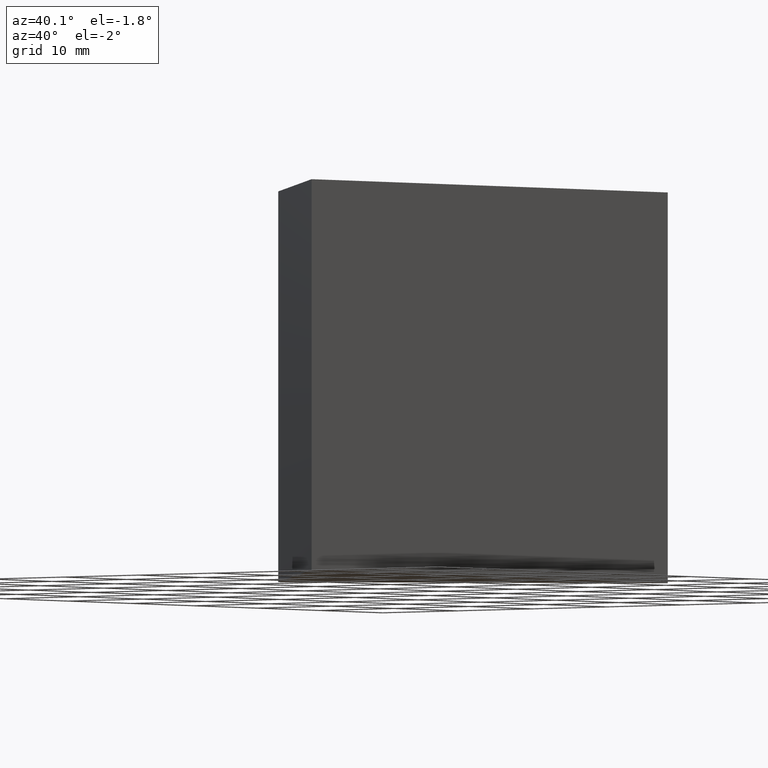
[diagram: clean part render]
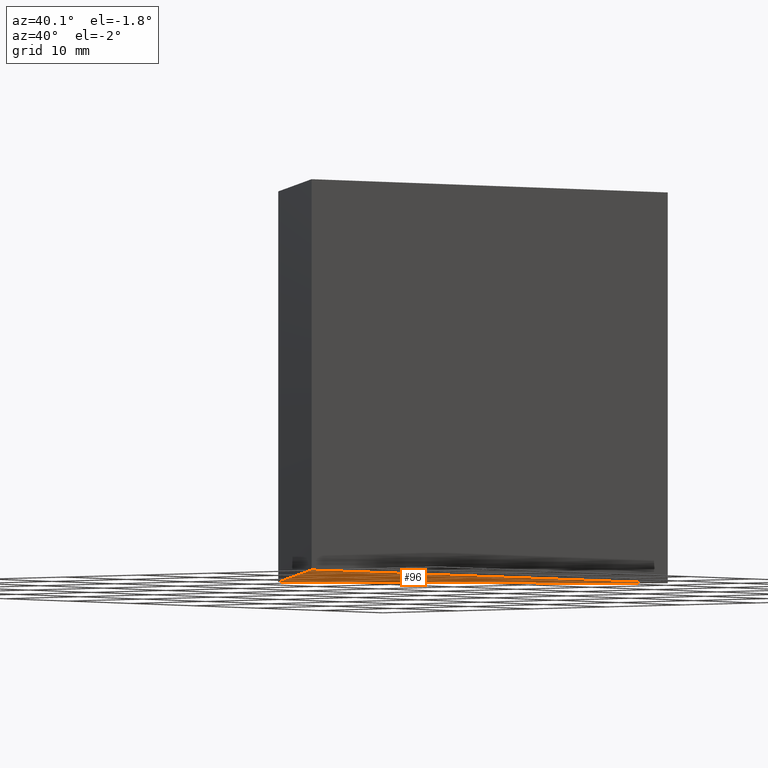
[diagram: same view with one face highlighted and labeled with its STEP entity id]
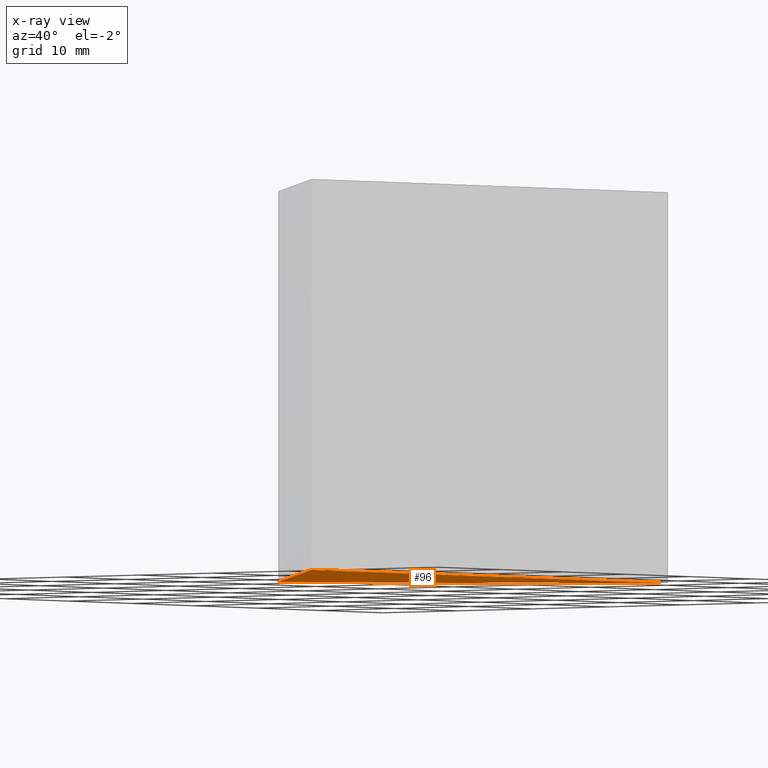
[diagram: x-ray of the same camera — body ghosted, the highlighted face saturated]
A machine part, auxiliary view. The second image highlights one B-rep face of the part: STEP entity #96.
The next image is the same camera in x-ray: the body ghosted, the highlighted face saturated — about 0% of this face is hidden behind the body in this view.
In plain terms, the highlighted planar face has unit normal (-0, 0, 1).
Its self-contained STEP definition (entity closure, byte-faithful):
#18 = VERTEX_POINT ( 'NONE', #36 ) ;
#25 = CARTESIAN_POINT ( 'NONE',  ( 563.0071948272914100, 144.2705164697499600, 0.0000000000000000000 ) ) ;
#30 = VECTOR ( 'NONE', #105, 1000.000000000000100 ) ;
#32 = FACE_OUTER_BOUND ( 'NONE', #62, .T. ) ;
#34 = AXIS2_PLACEMENT_3D ( 'NONE', #129, #103, #79 ) ;
#36 = CARTESIAN_POINT ( 'NONE',  ( 591.2914660747533200, 172.5547877172118700, 0.0000000000000000000 ) ) ;
#39 = VECTOR ( 'NONE', #46, 1000.000000000000000 ) ;
#46 = DIRECTION ( 'NONE',  ( -0.7071067811865479100, -0.7071067811865472400, -0.0000000000000000000 ) ) ;
#47 = DIRECTION ( 'NONE',  ( 0.0000000000000000000, 1.000000000000000000, 0.0000000000000000000 ) ) ;
#62 = EDGE_LOOP ( 'NONE', ( #148, #84, #124 ) ) ;
#64 = LINE ( 'NONE', #140, #30 ) ;
#73 = VECTOR ( 'NONE', #47, 1000.000000000000000 ) ;
#79 = DIRECTION ( 'NONE',  ( 1.000000000000000000, 0.0000000000000000000, 0.0000000000000000000 ) ) ;
#84 = ORIENTED_EDGE ( 'NONE', *, *, #144, .F. ) ;
#86 = CARTESIAN_POINT ( 'NONE',  ( 591.2914660747533200, 115.9862452222880600, 0.0000000000000000000 ) ) ;
#88 = EDGE_CURVE ( 'NONE', #120, #18, #133, .T. ) ;
#92 = CARTESIAN_POINT ( 'NONE',  ( 591.2914660747533200, 115.9862452222880600, 0.0000000000000000000 ) ) ;
#95 = VERTEX_POINT ( 'NONE', #101 ) ;
#96 = ADVANCED_FACE ( 'NONE', ( #32 ), #117, .F. ) ;
#101 = CARTESIAN_POINT ( 'NONE',  ( 563.0071948272914100, 144.2705164697499600, 0.0000000000000000000 ) ) ;
#103 = DIRECTION ( 'NONE',  ( -0.0000000000000000000, 0.0000000000000000000, 1.000000000000000000 ) ) ;
#105 = DIRECTION ( 'NONE',  ( 0.7071067811865474600, -0.7071067811865474600, 0.0000000000000000000 ) ) ;
#117 = PLANE ( 'NONE',  #34 ) ;
#120 = VERTEX_POINT ( 'NONE', #92 ) ;
#124 = ORIENTED_EDGE ( 'NONE', *, *, #88, .F. ) ;
#129 = CARTESIAN_POINT ( 'NONE',  ( 0.0000000000000000000, 0.0000000000000000000, 0.0000000000000000000 ) ) ;
#133 = LINE ( 'NONE', #86, #73 ) ;
#137 = LINE ( 'NONE', #25, #39 ) ;
#140 = CARTESIAN_POINT ( 'NONE',  ( 563.0071948272914100, 144.2705164697499600, 0.0000000000000000000 ) ) ;
#144 = EDGE_CURVE ( 'NONE', #18, #95, #137, .T. ) ;
#148 = ORIENTED_EDGE ( 'NONE', *, *, #157, .F. ) ;
#157 = EDGE_CURVE ( 'NONE', #95, #120, #64, .T. ) ;